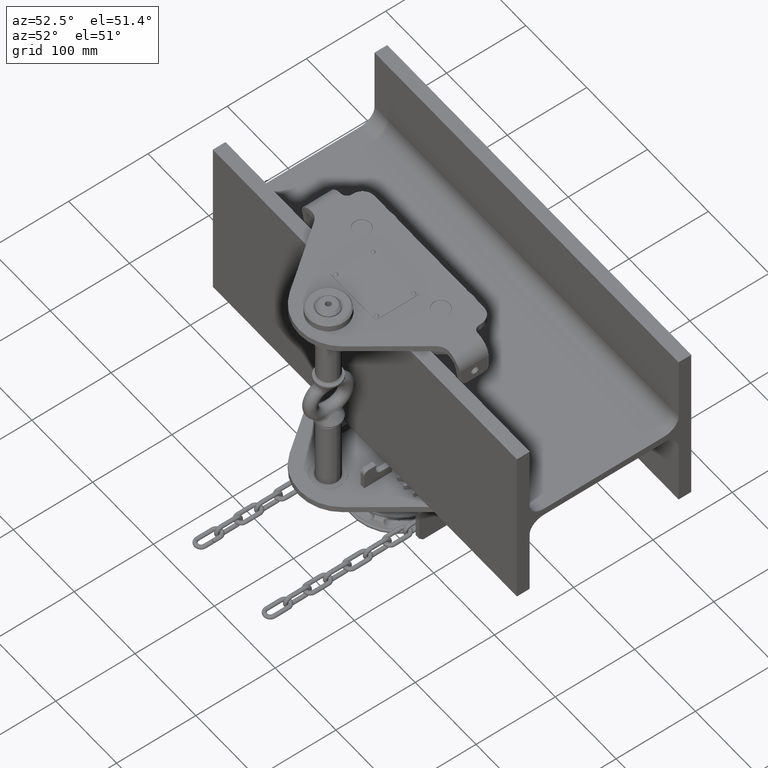
[diagram: clean part render]
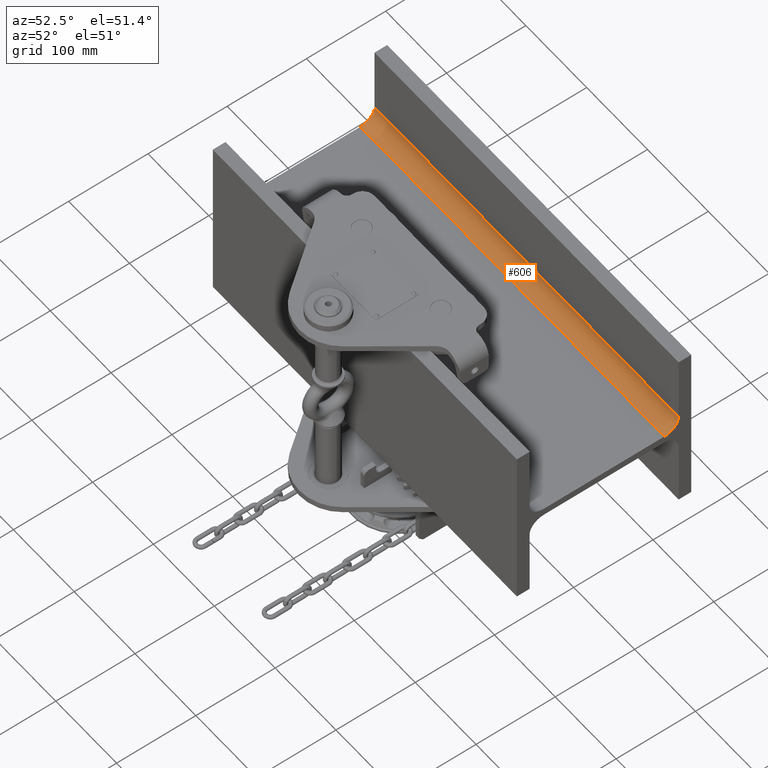
[diagram: same view with one face highlighted and labeled with its STEP entity id]
A machine part, auxiliary view. The second image highlights one B-rep face of the part: STEP entity #606.
In plain terms, the highlighted cylindrical surface (edge-blend (fillet) strip) has radius 18 mm, axis along (1, 0, 0).
Its self-contained STEP definition (entity closure, byte-faithful):
#606 = ADVANCED_FACE ( 'NONE', ( #42057 ), #25115, .F. ) ;
#2155 = VERTEX_POINT ( 'NONE', #80167 ) ;
#8854 = DIRECTION ( 'NONE',  ( 1.000000000000000000, 0.0000000000000000000, 7.703719777548941700E-034 ) ) ;
#9708 = DIRECTION ( 'NONE',  ( 1.000000000000000000, 0.0000000000000000000, 7.703719777548941700E-034 ) ) ;
#10988 = LINE ( 'NONE', #70080, #36500 ) ;
#11174 = CIRCLE ( 'NONE', #53842, 18.00000000000002500 ) ;
#25115 = CYLINDRICAL_SURFACE ( 'NONE', #88215, 18.00000000000002500 ) ;
#26417 = ORIENTED_EDGE ( 'NONE', *, *, #60176, .T. ) ;
#36500 = VECTOR ( 'NONE', #85686, 1000.000000000000000 ) ;
#39150 = ORIENTED_EDGE ( 'NONE', *, *, #40635, .T. ) ;
#40635 = EDGE_CURVE ( 'NONE', #99077, #2155, #11174, .T. ) ;
#40799 = VERTEX_POINT ( 'NONE', #48105 ) ;
#42057 = FACE_OUTER_BOUND ( 'NONE', #46689, .T. ) ;
#42135 = ORIENTED_EDGE ( 'NONE', *, *, #72443, .F. ) ;
#46689 = EDGE_LOOP ( 'NONE', ( #39150, #83170, #42135, #26417 ) ) ;
#46764 = CARTESIAN_POINT ( 'NONE',  ( -250.0000000000001100, 76.00000000000004300, 22.75000000000035900 ) ) ;
#48105 = CARTESIAN_POINT ( 'NONE',  ( -250.0000000000001100, 94.00000000000008500, 22.75000000000035900 ) ) ;
#48306 = CARTESIAN_POINT ( 'NONE',  ( -250.0000000000001100, 94.00000000000008500, 22.75000000000035900 ) ) ;
#52919 = DIRECTION ( 'NONE',  ( 1.000000000000000000, 0.0000000000000000000, 7.703719777548941700E-034 ) ) ;
#53842 = AXIS2_PLACEMENT_3D ( 'NONE', #54213, #99416, #84779 ) ;
#53905 = DIRECTION ( 'NONE',  ( 0.0000000000000000000, 0.0000000000000000000, -1.000000000000000000 ) ) ;
#54213 = CARTESIAN_POINT ( 'NONE',  ( 250.0000000000000000, 76.00000000000004300, 22.75000000000035900 ) ) ;
#60176 = EDGE_CURVE ( 'NONE', #63113, #99077, #10988, .T. ) ;
#60754 = CARTESIAN_POINT ( 'NONE',  ( -250.0000000000001100, 76.00000000000004300, 22.75000000000035900 ) ) ;
#61702 = DIRECTION ( 'NONE',  ( 0.0000000000000000000, 0.0000000000000000000, -1.000000000000000000 ) ) ;
#63113 = VERTEX_POINT ( 'NONE', #96582 ) ;
#63358 = EDGE_CURVE ( 'NONE', #40799, #2155, #80821, .T. ) ;
#70080 = CARTESIAN_POINT ( 'NONE',  ( -250.0000000000001100, 76.00000000000004300, 4.750000000000324200 ) ) ;
#72443 = EDGE_CURVE ( 'NONE', #63113, #40799, #78153, .T. ) ;
#73488 = VECTOR ( 'NONE', #9708, 1000.000000000000000 ) ;
#78153 = CIRCLE ( 'NONE', #100203, 18.00000000000002500 ) ;
#80167 = CARTESIAN_POINT ( 'NONE',  ( 250.0000000000000000, 94.00000000000008500, 22.75000000000035900 ) ) ;
#80821 = LINE ( 'NONE', #48306, #73488 ) ;
#81117 = CARTESIAN_POINT ( 'NONE',  ( 250.0000000000000000, 76.00000000000004300, 4.750000000000324200 ) ) ;
#83170 = ORIENTED_EDGE ( 'NONE', *, *, #63358, .F. ) ;
#84779 = DIRECTION ( 'NONE',  ( 0.0000000000000000000, 0.0000000000000000000, -1.000000000000000000 ) ) ;
#85686 = DIRECTION ( 'NONE',  ( 1.000000000000000000, 0.0000000000000000000, 7.703719777548941700E-034 ) ) ;
#88215 = AXIS2_PLACEMENT_3D ( 'NONE', #46764, #8854, #61702 ) ;
#96582 = CARTESIAN_POINT ( 'NONE',  ( -250.0000000000001100, 76.00000000000004300, 4.750000000000324200 ) ) ;
#99077 = VERTEX_POINT ( 'NONE', #81117 ) ;
#99416 = DIRECTION ( 'NONE',  ( 1.000000000000000000, 0.0000000000000000000, 7.703719777548941700E-034 ) ) ;
#100203 = AXIS2_PLACEMENT_3D ( 'NONE', #60754, #52919, #53905 ) ;